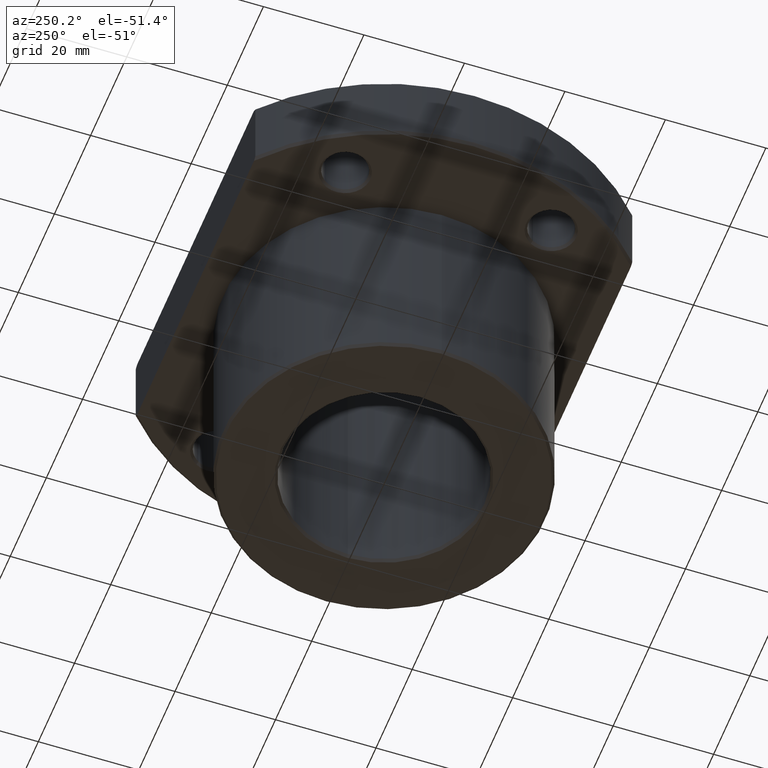
[diagram: clean part render]
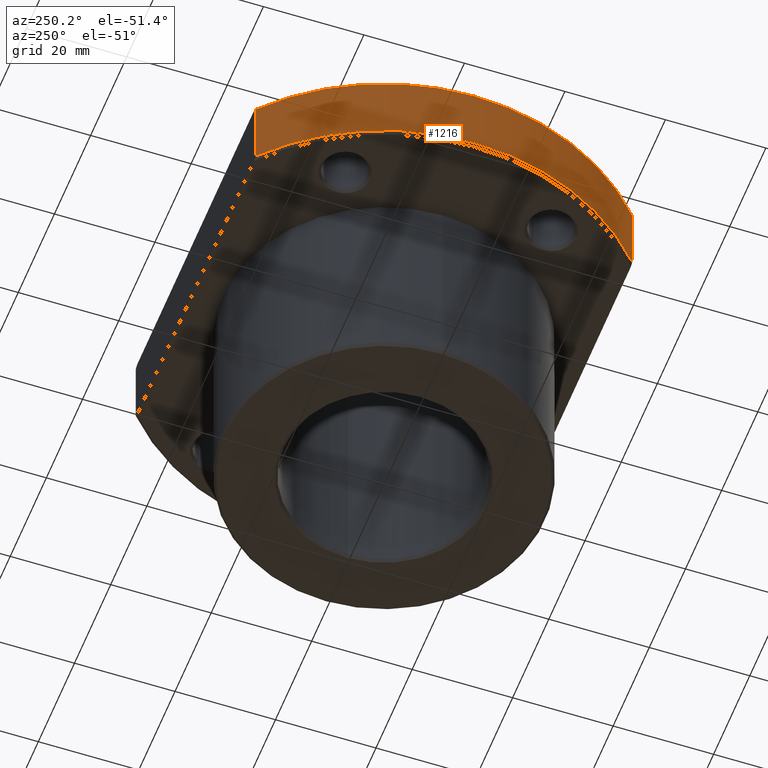
[diagram: same view with one face highlighted and labeled with its STEP entity id]
A machine part, auxiliary view. The second image highlights one B-rep face of the part: STEP entity #1216.
In plain terms, the highlighted cylindrical surface (partial cylindrical patch) has radius 50 mm, axis along (0, 0, 1).
Its self-contained STEP definition (entity closure, byte-faithful):
#1117=AXIS2_PLACEMENT_3D('Circle Axis2P3D',#1115,#1116,$) ;
#1189=AXIS2_PLACEMENT_3D('Cylinder Axis2P3D',#1186,#1187,#1188) ;
#1207=AXIS2_PLACEMENT_3D('Circle Axis2P3D',#1205,#1206,$) ;
#1112=CARTESIAN_POINT('Vertex',(-33.0718913883,37.5,55.5)) ;
#1115=CARTESIAN_POINT('Axis2P3D Location',(1.42108547152E-014,3.06151588456E-015,55.5)) ;
#1119=CARTESIAN_POINT('Vertex',(-33.0718913883,-37.5,55.5)) ;
#1186=CARTESIAN_POINT('Axis2P3D Location',(0.,0.,48.5)) ;
#1191=CARTESIAN_POINT('Line Origine',(-33.0718913883,-37.5,48.5)) ;
#1195=CARTESIAN_POINT('Vertex',(-33.0718913883,-37.5,41.5)) ;
#1198=CARTESIAN_POINT('Line Origine',(-33.0718913883,37.5,48.5)) ;
#1202=CARTESIAN_POINT('Vertex',(-33.0718913883,37.5,41.5)) ;
#1205=CARTESIAN_POINT('Axis2P3D Location',(0.,0.,41.5)) ;
#1116=DIRECTION('Axis2P3D Direction',(-1.41327719426E-014,1.27415036036E-014,1.)) ;
#1187=DIRECTION('Axis2P3D Direction',(0.,0.,1.)) ;
#1188=DIRECTION('Axis2P3D XDirection',(-0.661437827766,0.75,0.)) ;
#1192=DIRECTION('Vector Direction',(0.,0.,1.)) ;
#1199=DIRECTION('Vector Direction',(0.,0.,1.)) ;
#1206=DIRECTION('Axis2P3D Direction',(0.,0.,1.)) ;
#1193=VECTOR('Line Direction',#1192,1.) ;
#1200=VECTOR('Line Direction',#1199,1.) ;
#1211=ORIENTED_EDGE('',*,*,#1197,.T.) ;
#1212=ORIENTED_EDGE('',*,*,#1121,.F.) ;
#1213=ORIENTED_EDGE('',*,*,#1204,.F.) ;
#1214=ORIENTED_EDGE('',*,*,#1209,.T.) ;
#1216=ADVANCED_FACE('',(#1215),#1190,.T.) ;
#1118=CIRCLE('generated circle',#1117,50.) ;
#1208=CIRCLE('generated circle',#1207,50.) ;
#1190=CYLINDRICAL_SURFACE('generated cylinder',#1189,50.) ;
#1121=EDGE_CURVE('',#1113,#1120,#1118,.T.) ;
#1197=EDGE_CURVE('',#1196,#1120,#1194,.T.) ;
#1204=EDGE_CURVE('',#1203,#1113,#1201,.T.) ;
#1209=EDGE_CURVE('',#1203,#1196,#1208,.T.) ;
#1210=EDGE_LOOP('',(#1211,#1212,#1213,#1214)) ;
#1215=FACE_OUTER_BOUND('',#1210,.T.) ;
#1194=LINE('Line',#1191,#1193) ;
#1201=LINE('Line',#1198,#1200) ;
#1113=VERTEX_POINT('',#1112) ;
#1120=VERTEX_POINT('',#1119) ;
#1196=VERTEX_POINT('',#1195) ;
#1203=VERTEX_POINT('',#1202) ;